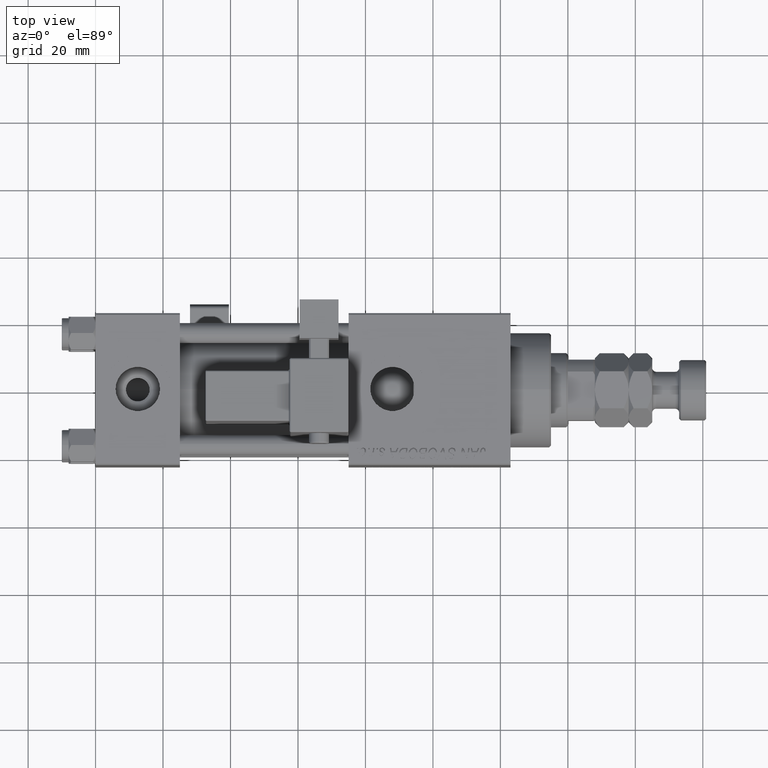
[diagram: clean part render]
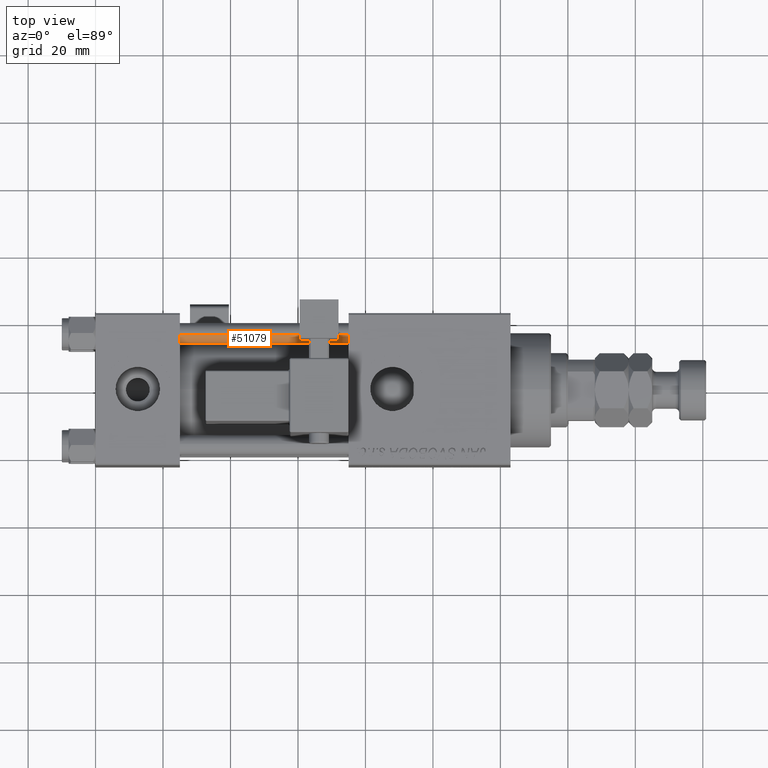
[diagram: same view with one face highlighted and labeled with its STEP entity id]
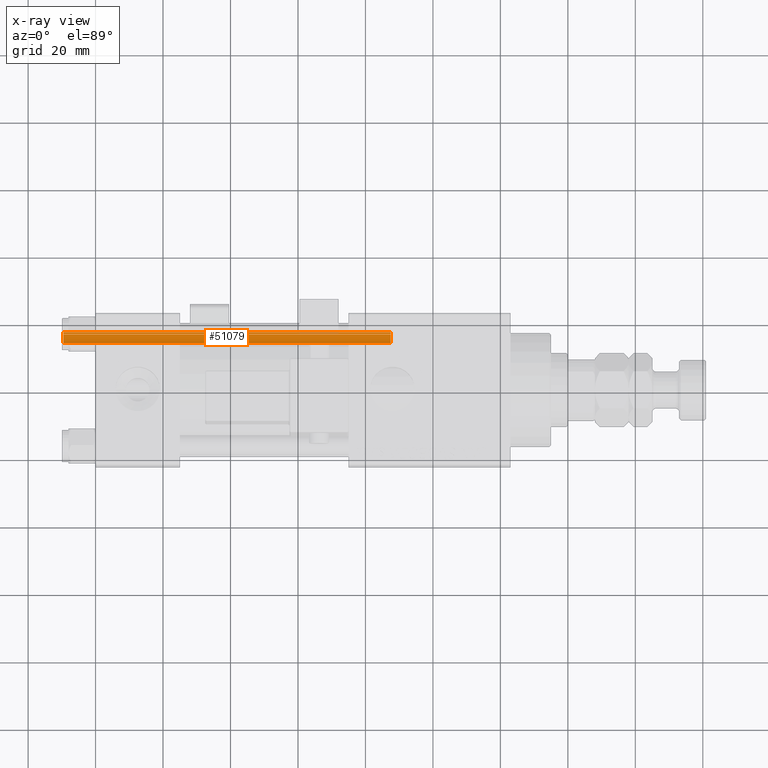
[diagram: x-ray of the same camera — body ghosted, the highlighted face saturated]
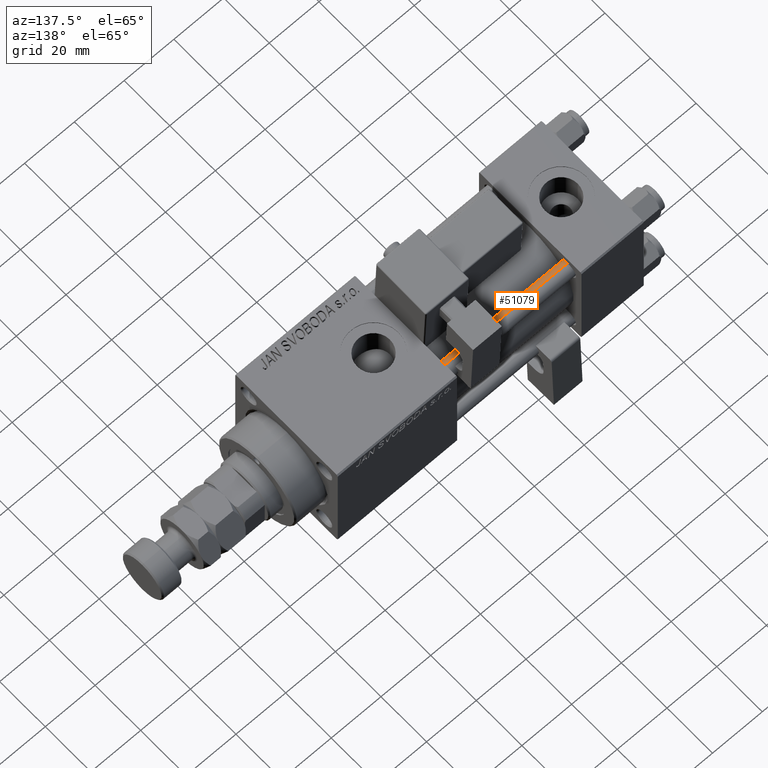
[diagram: same view with one face highlighted and labeled with its STEP entity id]
A machine part, top view. The second image highlights one B-rep face of the part: STEP entity #51079.
The next image is the same camera in x-ray: the body ghosted, the highlighted face saturated — about 2% of this face is hidden behind the body in this view.
A second angle (auxiliary view) of the same face is appended — the face is thin or edge-on in the first view.
In plain terms, the highlighted cylindrical surface (edge-blend (fillet) strip) has radius 3 mm, axis along (-1, 0, 0).
Its self-contained STEP definition (entity closure, byte-faithful):
#1251 = DIRECTION ( 'NONE',  ( 1.000000000000000000, 0.000000000000000000, 0.000000000000000000 ) ) ;
#2473 = DIRECTION ( 'NONE',  ( -0.000000000000000000, -0.000000000000000000, 1.000000000000000000 ) ) ;
#5987 = AXIS2_PLACEMENT_3D ( 'NONE', #50651, #34712, #1251 ) ;
#6552 = ORIENTED_EDGE ( 'NONE', *, *, #10762, .T. ) ;
#8684 = DIRECTION ( 'NONE',  ( -0.000000000000000000, -0.000000000000000000, -1.000000000000000000 ) ) ;
#8992 = DIRECTION ( 'NONE',  ( -1.000000000000000000, 0.000000000000000000, 0.000000000000000000 ) ) ;
#10762 = EDGE_CURVE ( 'NONE', #39346, #11942, #15630, .T. ) ;
#11419 = VERTEX_POINT ( 'NONE', #43299 ) ;
#11942 = VERTEX_POINT ( 'NONE', #35373 ) ;
#15248 = LINE ( 'NONE', #27588, #41419 ) ;
#15630 = CIRCLE ( 'NONE', #5987, 3.000000000000000444 ) ;
#19877 = EDGE_CURVE ( 'NONE', #39346, #52376, #15248, .T. ) ;
#20238 = DIRECTION ( 'NONE',  ( 1.000000000000000000, 0.000000000000000000, 0.000000000000000000 ) ) ;
#21834 = EDGE_LOOP ( 'NONE', ( #27192, #6552, #39412, #47159 ) ) ;
#23498 = AXIS2_PLACEMENT_3D ( 'NONE', #31821, #2473, #20238 ) ;
#24825 = EDGE_CURVE ( 'NONE', #11942, #11419, #33364, .T. ) ;
#26104 = CIRCLE ( 'NONE', #23498, 3.000000000000000444 ) ;
#26252 = CYLINDRICAL_SURFACE ( 'NONE', #30784, 3.000000000000000444 ) ;
#26524 = FACE_OUTER_BOUND ( 'NONE', #21834, .T. ) ;
#27192 = ORIENTED_EDGE ( 'NONE', *, *, #19877, .F. ) ;
#27588 = CARTESIAN_POINT ( 'NONE',  ( 3.000000000000000444, 3.673940397442060361E-16, 98.00000000000000000 ) ) ;
#28732 = CARTESIAN_POINT ( 'NONE',  ( -3.000000000000000444, 0.000000000000000000, 98.00000000000000000 ) ) ;
#30784 = AXIS2_PLACEMENT_3D ( 'NONE', #34752, #50688, #8992 ) ;
#31821 = CARTESIAN_POINT ( 'NONE',  ( 0.000000000000000000, 0.000000000000000000, 0.5000000000000281997 ) ) ;
#33039 = CARTESIAN_POINT ( 'NONE',  ( 3.000000000000000444, 3.673940397442060361E-16, 97.50000000000001421 ) ) ;
#33364 = LINE ( 'NONE', #28732, #42533 ) ;
#34712 = DIRECTION ( 'NONE',  ( 0.000000000000000000, 0.000000000000000000, -1.000000000000000000 ) ) ;
#34752 = CARTESIAN_POINT ( 'NONE',  ( 0.000000000000000000, 0.000000000000000000, 98.00000000000000000 ) ) ;
#35373 = CARTESIAN_POINT ( 'NONE',  ( -3.000000000000000444, 0.000000000000000000, 97.50000000000001421 ) ) ;
#38382 = CARTESIAN_POINT ( 'NONE',  ( 3.000000000000000444, 3.673940397442060361E-16, 0.5000000000000281997 ) ) ;
#39165 = EDGE_CURVE ( 'NONE', #11419, #52376, #26104, .T. ) ;
#39346 = VERTEX_POINT ( 'NONE', #33039 ) ;
#39412 = ORIENTED_EDGE ( 'NONE', *, *, #24825, .T. ) ;
#39660 = DIRECTION ( 'NONE',  ( -0.000000000000000000, -0.000000000000000000, -1.000000000000000000 ) ) ;
#41419 = VECTOR ( 'NONE', #39660, 1000.000000000000000 ) ;
#42533 = VECTOR ( 'NONE', #8684, 1000.000000000000000 ) ;
#43299 = CARTESIAN_POINT ( 'NONE',  ( -3.000000000000000444, 0.000000000000000000, 0.5000000000000281997 ) ) ;
#47159 = ORIENTED_EDGE ( 'NONE', *, *, #39165, .T. ) ;
#50651 = CARTESIAN_POINT ( 'NONE',  ( 0.000000000000000000, 0.000000000000000000, 97.50000000000001421 ) ) ;
#50688 = DIRECTION ( 'NONE',  ( -0.000000000000000000, -0.000000000000000000, -1.000000000000000000 ) ) ;
#51079 = ADVANCED_FACE ( 'NONE', ( #26524 ), #26252, .T. ) ;
#52376 = VERTEX_POINT ( 'NONE', #38382 ) ;